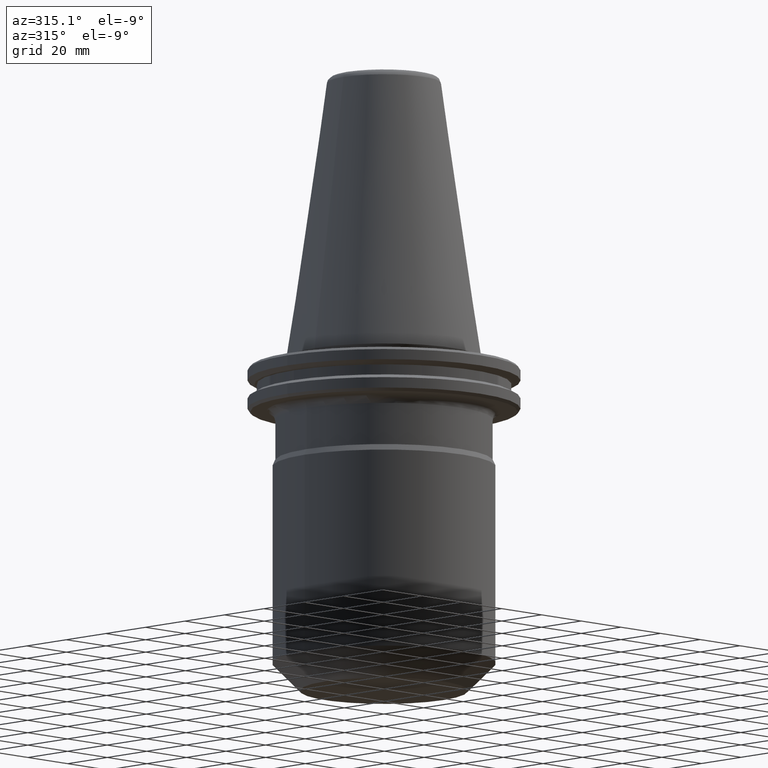
[diagram: clean part render]
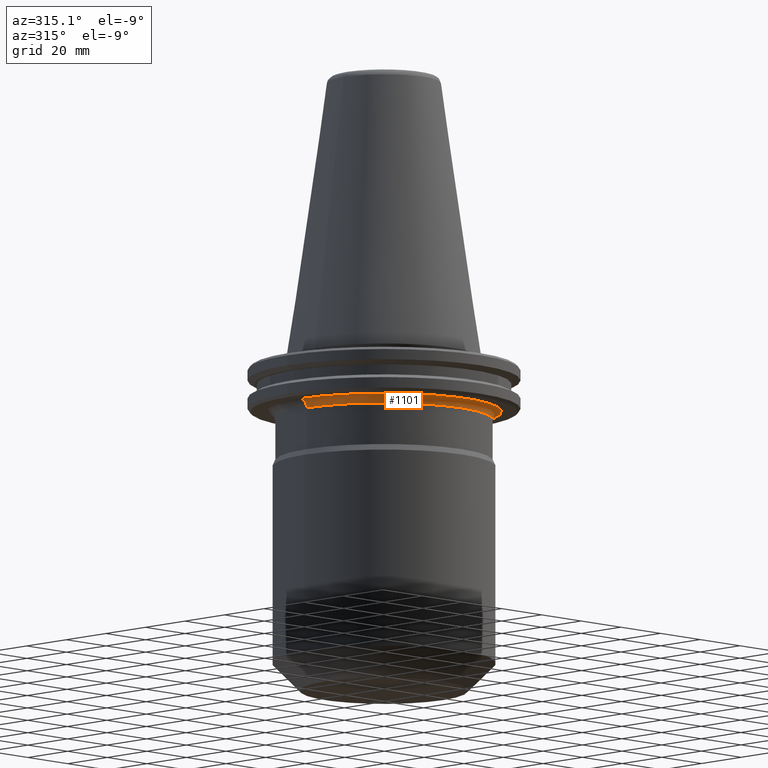
[diagram: same view with one face highlighted and labeled with its STEP entity id]
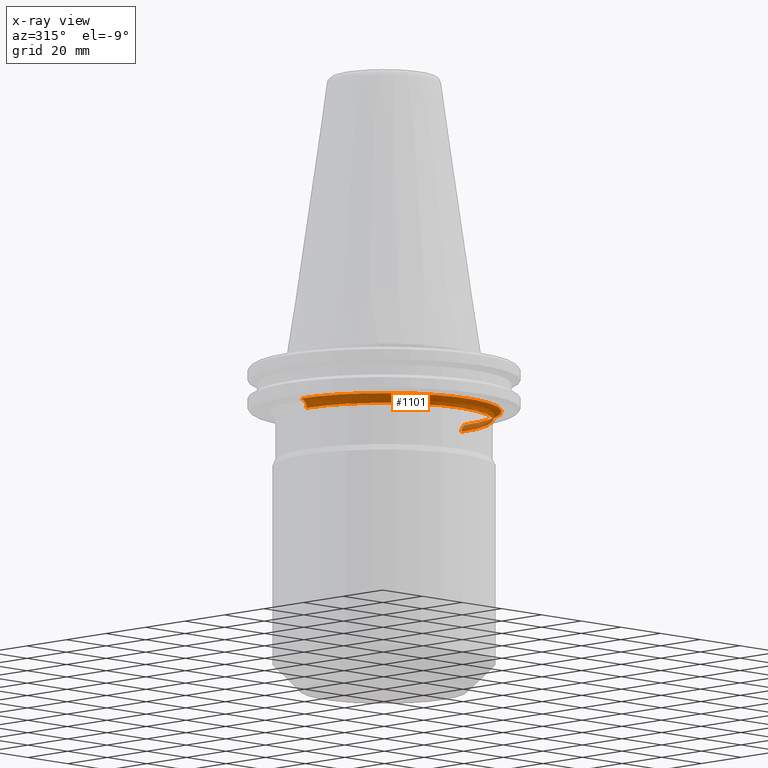
[diagram: x-ray of the same camera — body ghosted, the highlighted face saturated]
A machine part, auxiliary view. The second image highlights one B-rep face of the part: STEP entity #1101.
The next image is the same camera in x-ray: the body ghosted, the highlighted face saturated — about 7% of this face is hidden behind the body in this view.
In plain terms, the highlighted toroidal blend (fillet) surface has major radius 42 mm and minor (blend) radius 3 mm.
Its self-contained STEP definition (entity closure, byte-faithful):
#11 = DIRECTION ( 'NONE',  ( 1.000000000000000000, 0.0000000000000000000, 0.0000000000000000000 ) ) ;
#21 = DIRECTION ( 'NONE',  ( 0.0000000000000000000, 0.0000000000000000000, -1.000000000000000000 ) ) ;
#90 = ORIENTED_EDGE ( 'NONE', *, *, #319, .F. ) ;
#112 = FACE_OUTER_BOUND ( 'NONE', #398, .T. ) ;
#125 = DIRECTION ( 'NONE',  ( 1.000000000000000000, 0.0000000000000000000, 0.0000000000000000000 ) ) ;
#151 = CIRCLE ( 'NONE', #741, 39.00000000000000000 ) ;
#208 = CARTESIAN_POINT ( 'NONE',  ( 0.0000000000000000000, 0.0000000000000000000, -22.09999999999995200 ) ) ;
#262 = CIRCLE ( 'NONE', #408, 3.000000000000002700 ) ;
#275 = DIRECTION ( 'NONE',  ( 1.000000000000000000, 0.0000000000000000000, 0.0000000000000000000 ) ) ;
#294 = DIRECTION ( 'NONE',  ( 1.224646799147353200E-016, 1.000000000000000000, 0.0000000000000000000 ) ) ;
#297 = DIRECTION ( 'NONE',  ( 0.0000000000000000000, -1.000000000000000000, 0.0000000000000000000 ) ) ;
#307 = ORIENTED_EDGE ( 'NONE', *, *, #689, .T. ) ;
#319 = EDGE_CURVE ( 'NONE', #1084, #1030, #151, .T. ) ;
#342 = TOROIDAL_SURFACE ( 'NONE', #598, 42.00000000000000000, 3.000000000000000000 ) ;
#348 = CARTESIAN_POINT ( 'NONE',  ( 0.0000000000000000000, 0.0000000000000000000, -22.09999999999995200 ) ) ;
#368 = CARTESIAN_POINT ( 'NONE',  ( 0.0000000000000000000, 0.0000000000000000000, -19.09999999999995200 ) ) ;
#386 = DIRECTION ( 'NONE',  ( -0.0000000000000000000, -0.0000000000000000000, 1.000000000000000000 ) ) ;
#398 = EDGE_LOOP ( 'NONE', ( #812, #307, #90, #652 ) ) ;
#408 = AXIS2_PLACEMENT_3D ( 'NONE', #928, #294, #968 ) ;
#424 = AXIS2_PLACEMENT_3D ( 'NONE', #798, #297, #882 ) ;
#532 = EDGE_CURVE ( 'NONE', #766, #992, #578, .T. ) ;
#546 = CARTESIAN_POINT ( 'NONE',  ( -42.00000000000000000, 5.143516556418883300E-015, -19.09999999999995200 ) ) ;
#578 = CIRCLE ( 'NONE', #821, 42.00000000000000000 ) ;
#598 = AXIS2_PLACEMENT_3D ( 'NONE', #208, #386, #125 ) ;
#639 = CARTESIAN_POINT ( 'NONE',  ( 42.00000000000000000, 0.0000000000000000000, -19.09999999999995200 ) ) ;
#652 = ORIENTED_EDGE ( 'NONE', *, *, #1078, .F. ) ;
#689 = EDGE_CURVE ( 'NONE', #766, #1030, #262, .T. ) ;
#724 = CARTESIAN_POINT ( 'NONE',  ( 39.00000000000000000, 0.0000000000000000000, -22.09999999999995200 ) ) ;
#741 = AXIS2_PLACEMENT_3D ( 'NONE', #348, #21, #11 ) ;
#766 = VERTEX_POINT ( 'NONE', #546 ) ;
#798 = CARTESIAN_POINT ( 'NONE',  ( 42.00000000000000000, 0.0000000000000000000, -22.09999999999995200 ) ) ;
#812 = ORIENTED_EDGE ( 'NONE', *, *, #532, .F. ) ;
#815 = CIRCLE ( 'NONE', #424, 2.999999999999999100 ) ;
#821 = AXIS2_PLACEMENT_3D ( 'NONE', #368, #947, #275 ) ;
#882 = DIRECTION ( 'NONE',  ( 0.0000000000000000000, 0.0000000000000000000, -1.000000000000000000 ) ) ;
#928 = CARTESIAN_POINT ( 'NONE',  ( -42.00000000000000000, 5.143516556418883300E-015, -22.09999999999995200 ) ) ;
#947 = DIRECTION ( 'NONE',  ( -0.0000000000000000000, -0.0000000000000000000, 1.000000000000000000 ) ) ;
#951 = CARTESIAN_POINT ( 'NONE',  ( -39.00000000000000000, 4.776122516674677900E-015, -22.09999999999995200 ) ) ;
#968 = DIRECTION ( 'NONE',  ( -1.000000000000000000, 1.224646799147352000E-016, 0.0000000000000000000 ) ) ;
#992 = VERTEX_POINT ( 'NONE', #639 ) ;
#1030 = VERTEX_POINT ( 'NONE', #951 ) ;
#1078 = EDGE_CURVE ( 'NONE', #992, #1084, #815, .T. ) ;
#1084 = VERTEX_POINT ( 'NONE', #724 ) ;
#1101 = ADVANCED_FACE ( 'NONE', ( #112 ), #342, .F. ) ;